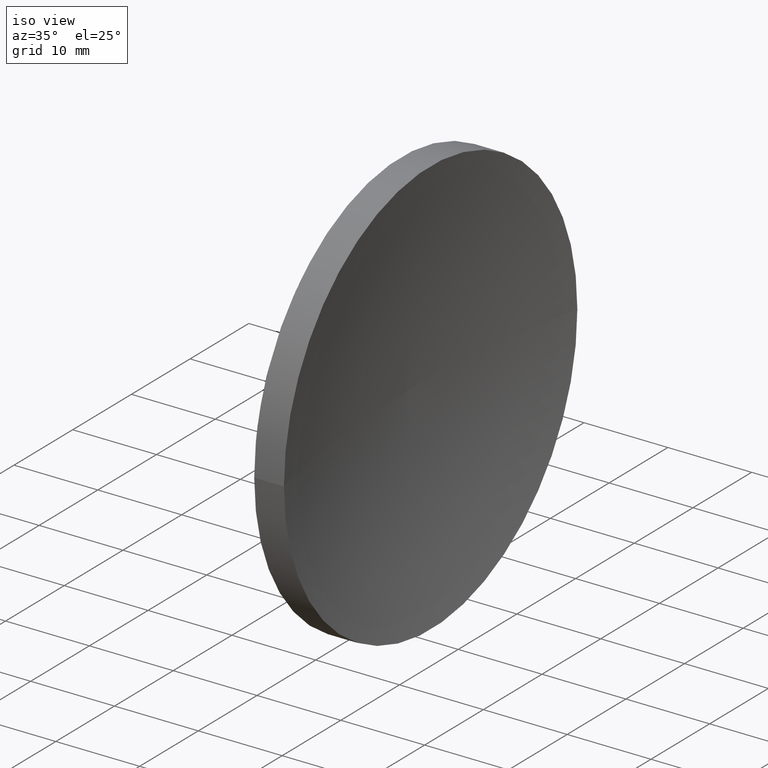
[diagram: clean part render]
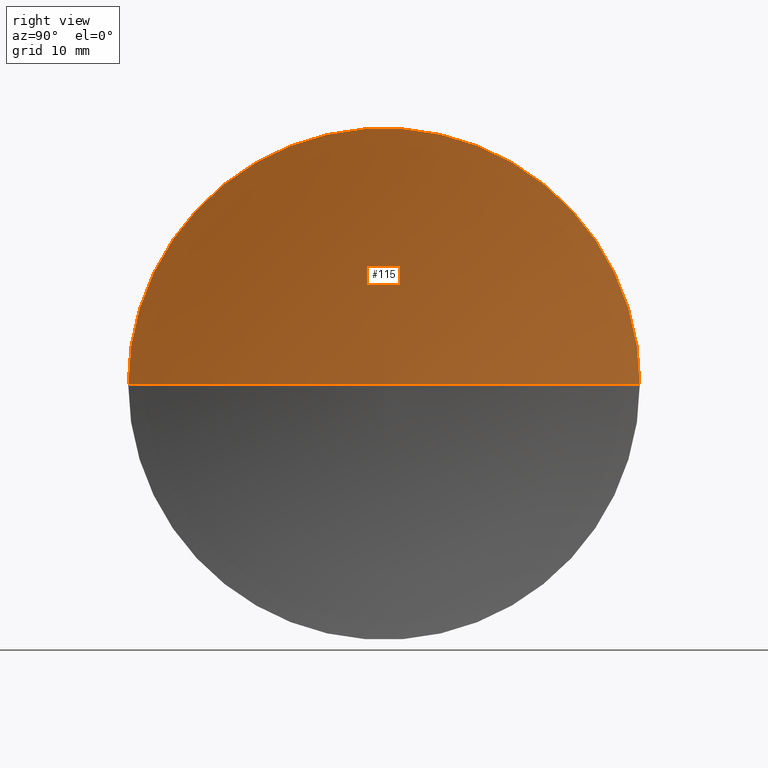
[diagram: tour spotlight — one face highlighted and labeled with its STEP entity id]
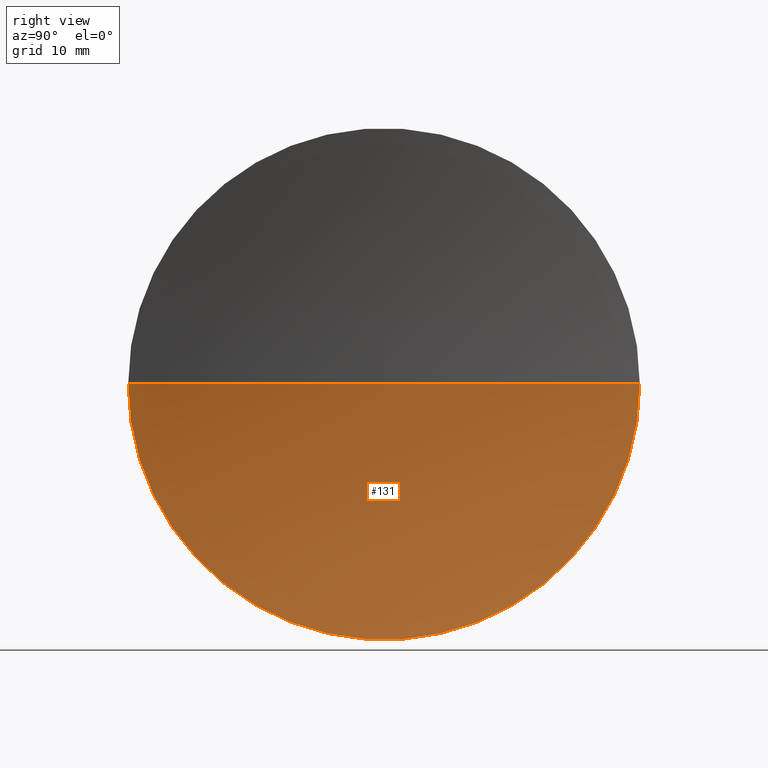
[diagram: tour spotlight — one face highlighted and labeled with its STEP entity id]
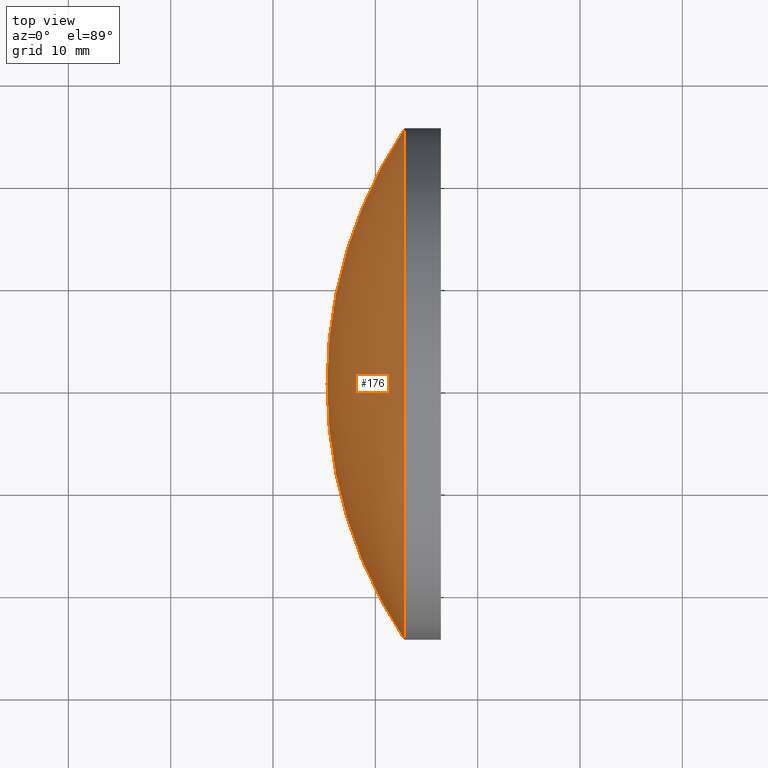
[diagram: tour spotlight — one face highlighted and labeled with its STEP entity id]
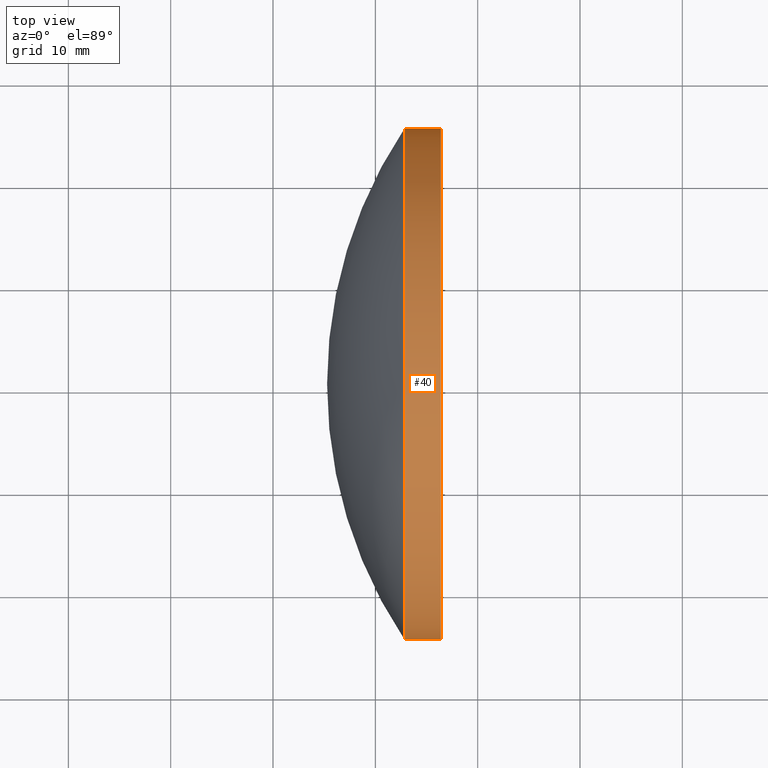
[diagram: tour spotlight — one face highlighted and labeled with its STEP entity id]
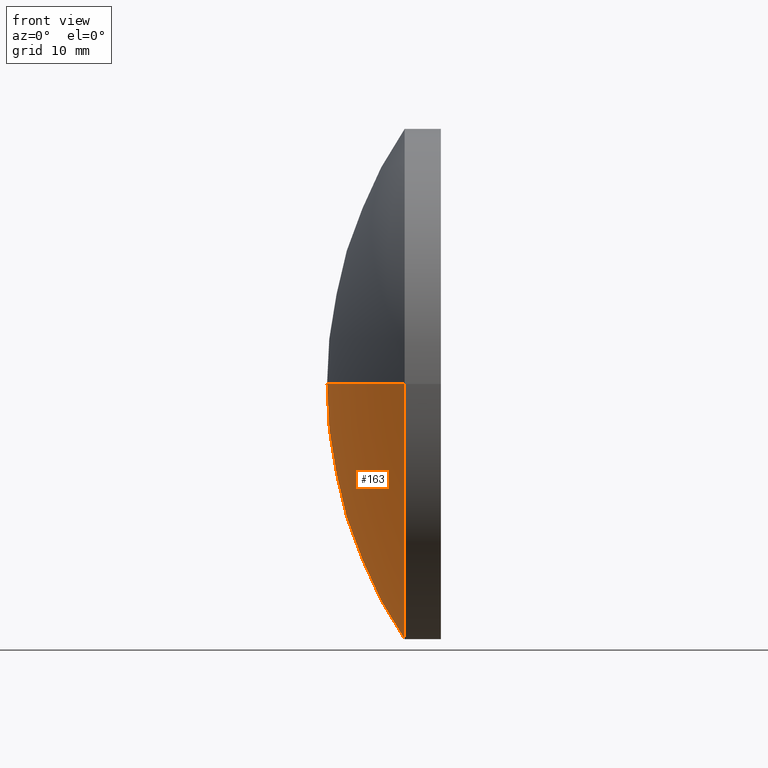
[diagram: tour spotlight — one face highlighted and labeled with its STEP entity id]
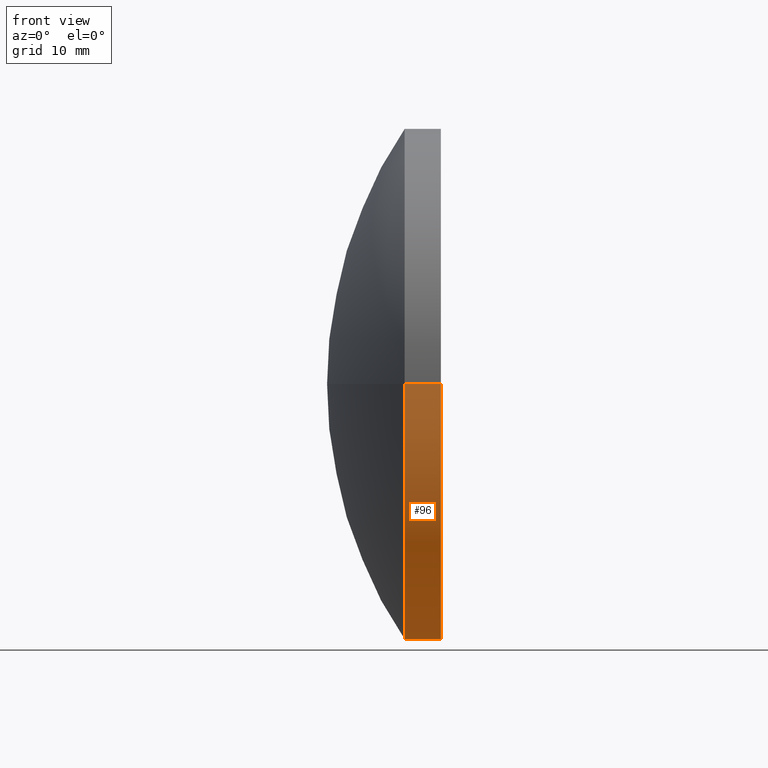
[diagram: tour spotlight — one face highlighted and labeled with its STEP entity id]
A machine part: a face-by-face anatomy tour. The part has 6 B-rep faces; the first image is the clean iso view, then the 6 largest visible faces are spotlighted one at a time (largest first), each with its STEP entity span.

Face 1 — right view, entity #115. In plain terms, the highlighted toroidal blend (fillet) surface has major radius 0.008 mm and minor (blend) radius 112 mm.
Definition (entity closure, byte-faithful):
#5 = ORIENTED_EDGE ( 'NONE', *, *, #56, .F. ) ;
#9 = DIRECTION ( 'NONE',  ( 0.0000000000000000000, -1.000000000000000000, -1.224646799147353200E-016 ) ) ;
#10 = CARTESIAN_POINT ( 'NONE',  ( 365.5821218413742600, 130.4336809418807400, 0.0000000000000000000 ) ) ;
#11 = DIRECTION ( 'NONE',  ( 8.496118506040342700E-032, -1.224646799147353200E-016, 1.000000000000000000 ) ) ;
#12 = ORIENTED_EDGE ( 'NONE', *, *, #71, .F. ) ;
#14 = AXIS2_PLACEMENT_3D ( 'NONE', #153, #126, #107 ) ;
#16 = VERTEX_POINT ( 'NONE', #139 ) ;
#21 = DIRECTION ( 'NONE',  ( -1.000000000000000000, -6.937607244762875000E-016, -0.0000000000000000000 ) ) ;
#25 = CIRCLE ( 'NONE', #120, 112.0000000000000100 ) ;
#32 = CARTESIAN_POINT ( 'NONE',  ( 256.4097896452622600, 130.4336809418806800, 0.0000000000000000000 ) ) ;
#49 = VERTEX_POINT ( 'NONE', #184 ) ;
#52 = AXIS2_PLACEMENT_3D ( 'NONE', #32, #141, #64 ) ;
#56 = EDGE_CURVE ( 'NONE', #130, #16, #164, .T. ) ;
#59 = TOROIDAL_SURFACE ( 'NONE', #165, -0.008036365572015639900, 112.0000000000000100 ) ;
#64 = DIRECTION ( 'NONE',  ( 0.0000000000000000000, -1.000000000000000000, 0.0000000000000000000 ) ) ;
#65 = CARTESIAN_POINT ( 'NONE',  ( 256.4097896452622600, 105.4336809418806800, 0.0000000000000000000 ) ) ;
#71 = EDGE_CURVE ( 'NONE', #16, #49, #25, .T. ) ;
#84 = ORIENTED_EDGE ( 'NONE', *, *, #162, .T. ) ;
#98 = CIRCLE ( 'NONE', #14, 111.9999999999999900 ) ;
#105 = CARTESIAN_POINT ( 'NONE',  ( 365.5821218413742600, 130.4256445763087400, -9.841709374546940000E-019 ) ) ;
#107 = DIRECTION ( 'NONE',  ( -1.000000000000000000, 0.0000000000000000000, 0.0000000000000000000 ) ) ;
#115 = ADVANCED_FACE ( 'NONE', ( #119 ), #59, .F. ) ;
#119 = FACE_OUTER_BOUND ( 'NONE', #138, .T. ) ;
#120 = AXIS2_PLACEMENT_3D ( 'NONE', #105, #11, #9 ) ;
#126 = DIRECTION ( 'NONE',  ( 0.0000000000000000000, 0.0000000000000000000, -1.000000000000000000 ) ) ;
#130 = VERTEX_POINT ( 'NONE', #65 ) ;
#138 = EDGE_LOOP ( 'NONE', ( #12, #5, #84 ) ) ;
#139 = CARTESIAN_POINT ( 'NONE',  ( 256.4097896452622600, 155.4336809418806500, 3.061616997868381100E-015 ) ) ;
#141 = DIRECTION ( 'NONE',  ( -1.000000000000000000, -6.937607244762875000E-016, -0.0000000000000000000 ) ) ;
#153 = CARTESIAN_POINT ( 'NONE',  ( 365.5821218413742600, 130.4417173074527300, 0.0000000000000000000 ) ) ;
#155 = DIRECTION ( 'NONE',  ( 6.937607244762875000E-016, -1.000000000000000000, 0.0000000000000000000 ) ) ;
#162 = EDGE_CURVE ( 'NONE', #130, #49, #98, .T. ) ;
#164 = CIRCLE ( 'NONE', #52, 24.99999999999998200 ) ;
#165 = AXIS2_PLACEMENT_3D ( 'NONE', #10, #21, #155 ) ;
#184 = CARTESIAN_POINT ( 'NONE',  ( 253.5821221296920100, 130.4336809418806500, 0.0000000000000000000 ) ) ;

Face 2 — right view, entity #131. In plain terms, the highlighted toroidal blend (fillet) surface has major radius 0.008 mm and minor (blend) radius 112 mm.
Definition (entity closure, byte-faithful):
#2 = AXIS2_PLACEMENT_3D ( 'NONE', #75, #51, #123 ) ;
#9 = DIRECTION ( 'NONE',  ( 0.0000000000000000000, -1.000000000000000000, -1.224646799147353200E-016 ) ) ;
#11 = DIRECTION ( 'NONE',  ( 8.496118506040342700E-032, -1.224646799147353200E-016, 1.000000000000000000 ) ) ;
#14 = AXIS2_PLACEMENT_3D ( 'NONE', #153, #126, #107 ) ;
#16 = VERTEX_POINT ( 'NONE', #139 ) ;
#20 = DIRECTION ( 'NONE',  ( -1.000000000000000000, -6.937607244762875000E-016, -0.0000000000000000000 ) ) ;
#25 = CIRCLE ( 'NONE', #120, 112.0000000000000100 ) ;
#49 = VERTEX_POINT ( 'NONE', #184 ) ;
#51 = DIRECTION ( 'NONE',  ( -1.000000000000000000, -6.937607244762875000E-016, -0.0000000000000000000 ) ) ;
#57 = ORIENTED_EDGE ( 'NONE', *, *, #133, .F. ) ;
#65 = CARTESIAN_POINT ( 'NONE',  ( 256.4097896452622600, 105.4336809418806800, 0.0000000000000000000 ) ) ;
#71 = EDGE_CURVE ( 'NONE', #16, #49, #25, .T. ) ;
#75 = CARTESIAN_POINT ( 'NONE',  ( 365.5821218413742600, 130.4336809418807400, 0.0000000000000000000 ) ) ;
#76 = DIRECTION ( 'NONE',  ( 0.0000000000000000000, -1.000000000000000000, 0.0000000000000000000 ) ) ;
#97 = ORIENTED_EDGE ( 'NONE', *, *, #162, .F. ) ;
#98 = CIRCLE ( 'NONE', #14, 111.9999999999999900 ) ;
#105 = CARTESIAN_POINT ( 'NONE',  ( 365.5821218413742600, 130.4256445763087400, -9.841709374546940000E-019 ) ) ;
#107 = DIRECTION ( 'NONE',  ( -1.000000000000000000, 0.0000000000000000000, 0.0000000000000000000 ) ) ;
#120 = AXIS2_PLACEMENT_3D ( 'NONE', #105, #11, #9 ) ;
#123 = DIRECTION ( 'NONE',  ( 6.937607244762875000E-016, -1.000000000000000000, 0.0000000000000000000 ) ) ;
#126 = DIRECTION ( 'NONE',  ( 0.0000000000000000000, 0.0000000000000000000, -1.000000000000000000 ) ) ;
#130 = VERTEX_POINT ( 'NONE', #65 ) ;
#131 = ADVANCED_FACE ( 'NONE', ( #190 ), #157, .F. ) ;
#133 = EDGE_CURVE ( 'NONE', #16, #130, #143, .T. ) ;
#139 = CARTESIAN_POINT ( 'NONE',  ( 256.4097896452622600, 155.4336809418806500, 3.061616997868381100E-015 ) ) ;
#143 = CIRCLE ( 'NONE', #187, 24.99999999999998200 ) ;
#144 = ORIENTED_EDGE ( 'NONE', *, *, #71, .T. ) ;
#153 = CARTESIAN_POINT ( 'NONE',  ( 365.5821218413742600, 130.4417173074527300, 0.0000000000000000000 ) ) ;
#157 = TOROIDAL_SURFACE ( 'NONE', #2, -0.008036365572015639900, 112.0000000000000100 ) ;
#162 = EDGE_CURVE ( 'NONE', #130, #49, #98, .T. ) ;
#174 = CARTESIAN_POINT ( 'NONE',  ( 256.4097896452622600, 130.4336809418806800, 0.0000000000000000000 ) ) ;
#179 = EDGE_LOOP ( 'NONE', ( #57, #144, #97 ) ) ;
#184 = CARTESIAN_POINT ( 'NONE',  ( 253.5821221296920100, 130.4336809418806500, 0.0000000000000000000 ) ) ;
#187 = AXIS2_PLACEMENT_3D ( 'NONE', #174, #20, #76 ) ;
#190 = FACE_OUTER_BOUND ( 'NONE', #179, .T. ) ;

Face 3 — top view, entity #176. In plain terms, the highlighted spherical surface has radius 45 mm.
Definition (entity closure, byte-faithful):
#1 = FACE_OUTER_BOUND ( 'NONE', #158, .T. ) ;
#3 = EDGE_CURVE ( 'NONE', #61, #38, #100, .T. ) ;
#4 = AXIS2_PLACEMENT_3D ( 'NONE', #116, #169, #72 ) ;
#26 = DIRECTION ( 'NONE',  ( 0.0000000000000000000, -1.000000000000000000, 0.0000000000000000000 ) ) ;
#27 = CIRCLE ( 'NONE', #114, 45.00000000000004300 ) ;
#33 = DIRECTION ( 'NONE',  ( -0.0000000000000000000, 0.0000000000000000000, 1.000000000000000000 ) ) ;
#34 = CARTESIAN_POINT ( 'NONE',  ( 252.8655572537508100, 155.4336809418806800, 3.061616997868380700E-015 ) ) ;
#38 = VERTEX_POINT ( 'NONE', #136 ) ;
#42 = DIRECTION ( 'NONE',  ( -0.0000000000000000000, 0.0000000000000000000, -1.000000000000000000 ) ) ;
#46 = CIRCLE ( 'NONE', #154, 24.99999999999998200 ) ;
#61 = VERTEX_POINT ( 'NONE', #185 ) ;
#63 = CARTESIAN_POINT ( 'NONE',  ( 290.2821311214902400, 130.4336809418806800, 0.0000000000000000000 ) ) ;
#67 = ORIENTED_EDGE ( 'NONE', *, *, #79, .T. ) ;
#70 = ORIENTED_EDGE ( 'NONE', *, *, #172, .T. ) ;
#72 = DIRECTION ( 'NONE',  ( 0.0000000000000000000, 1.000000000000000000, 1.224646799147353200E-016 ) ) ;
#74 = ORIENTED_EDGE ( 'NONE', *, *, #3, .F. ) ;
#78 = CARTESIAN_POINT ( 'NONE',  ( 290.2821311214902400, 130.4336809418806800, 0.0000000000000000000 ) ) ;
#79 = EDGE_CURVE ( 'NONE', #92, #38, #27, .T. ) ;
#92 = VERTEX_POINT ( 'NONE', #34 ) ;
#100 = CIRCLE ( 'NONE', #4, 45.00000000000001400 ) ;
#108 = CARTESIAN_POINT ( 'NONE',  ( 252.8655572537508100, 130.4336809418806800, 0.0000000000000000000 ) ) ;
#113 = SPHERICAL_SURFACE ( 'NONE', #178, 45.00000000000001400 ) ;
#114 = AXIS2_PLACEMENT_3D ( 'NONE', #63, #33, #140 ) ;
#116 = CARTESIAN_POINT ( 'NONE',  ( 290.2821311214902400, 130.4336809418806800, 0.0000000000000000000 ) ) ;
#136 = CARTESIAN_POINT ( 'NONE',  ( 245.2821311214902400, 130.4336809418806500, 0.0000000000000000000 ) ) ;
#140 = DIRECTION ( 'NONE',  ( 1.000000000000000000, 0.0000000000000000000, 0.0000000000000000000 ) ) ;
#146 = DIRECTION ( 'NONE',  ( -1.233581138472395900E-015, 1.000000000000000000, 0.0000000000000000000 ) ) ;
#154 = AXIS2_PLACEMENT_3D ( 'NONE', #108, #159, #26 ) ;
#158 = EDGE_LOOP ( 'NONE', ( #74, #70, #67 ) ) ;
#159 = DIRECTION ( 'NONE',  ( -1.000000000000000000, -6.937607244762875000E-016, -0.0000000000000000000 ) ) ;
#169 = DIRECTION ( 'NONE',  ( -8.496118506040342700E-032, 1.224646799147353200E-016, -1.000000000000000000 ) ) ;
#172 = EDGE_CURVE ( 'NONE', #61, #92, #46, .T. ) ;
#176 = ADVANCED_FACE ( 'NONE', ( #1 ), #113, .T. ) ;
#178 = AXIS2_PLACEMENT_3D ( 'NONE', #78, #42, #146 ) ;
#185 = CARTESIAN_POINT ( 'NONE',  ( 252.8655572537508100, 105.4336809418807000, 0.0000000000000000000 ) ) ;

Face 4 — top view, entity #40. In plain terms, the highlighted cylindrical surface (partial cylindrical patch) has radius 25 mm, axis along (-1, -0, -0).
Definition (entity closure, byte-faithful):
#16 = VERTEX_POINT ( 'NONE', #139 ) ;
#19 = LINE ( 'NONE', #104, #44 ) ;
#26 = DIRECTION ( 'NONE',  ( 0.0000000000000000000, -1.000000000000000000, 0.0000000000000000000 ) ) ;
#29 = CYLINDRICAL_SURFACE ( 'NONE', #101, 24.99999999999996800 ) ;
#30 = EDGE_LOOP ( 'NONE', ( #87, #170, #47, #124 ) ) ;
#32 = CARTESIAN_POINT ( 'NONE',  ( 256.4097896452622600, 130.4336809418806800, 0.0000000000000000000 ) ) ;
#34 = CARTESIAN_POINT ( 'NONE',  ( 252.8655572537508100, 155.4336809418806800, 3.061616997868380700E-015 ) ) ;
#36 = CARTESIAN_POINT ( 'NONE',  ( 231.8889825959263100, 155.4336809418806200, 3.061616997868379100E-015 ) ) ;
#40 = ADVANCED_FACE ( 'NONE', ( #128 ), #29, .T. ) ;
#44 = VECTOR ( 'NONE', #142, 1000.000000000000000 ) ;
#45 = EDGE_CURVE ( 'NONE', #16, #92, #134, .T. ) ;
#46 = CIRCLE ( 'NONE', #154, 24.99999999999998200 ) ;
#47 = ORIENTED_EDGE ( 'NONE', *, *, #172, .F. ) ;
#50 = DIRECTION ( 'NONE',  ( -1.000000000000000000, -6.937607244762875000E-016, -0.0000000000000000000 ) ) ;
#52 = AXIS2_PLACEMENT_3D ( 'NONE', #32, #141, #64 ) ;
#56 = EDGE_CURVE ( 'NONE', #130, #16, #164, .T. ) ;
#61 = VERTEX_POINT ( 'NONE', #185 ) ;
#64 = DIRECTION ( 'NONE',  ( 0.0000000000000000000, -1.000000000000000000, 0.0000000000000000000 ) ) ;
#65 = CARTESIAN_POINT ( 'NONE',  ( 256.4097896452622600, 105.4336809418806800, 0.0000000000000000000 ) ) ;
#87 = ORIENTED_EDGE ( 'NONE', *, *, #56, .T. ) ;
#89 = EDGE_CURVE ( 'NONE', #130, #61, #19, .T. ) ;
#92 = VERTEX_POINT ( 'NONE', #34 ) ;
#101 = AXIS2_PLACEMENT_3D ( 'NONE', #121, #182, #117 ) ;
#104 = CARTESIAN_POINT ( 'NONE',  ( 231.8889825959263600, 105.4336809418806800, 0.0000000000000000000 ) ) ;
#108 = CARTESIAN_POINT ( 'NONE',  ( 252.8655572537508100, 130.4336809418806800, 0.0000000000000000000 ) ) ;
#117 = DIRECTION ( 'NONE',  ( 1.110223024625157900E-015, -1.000000000000000000, 0.0000000000000000000 ) ) ;
#121 = CARTESIAN_POINT ( 'NONE',  ( 231.8889825959263400, 130.4336809418806500, 0.0000000000000000000 ) ) ;
#124 = ORIENTED_EDGE ( 'NONE', *, *, #89, .F. ) ;
#128 = FACE_OUTER_BOUND ( 'NONE', #30, .T. ) ;
#130 = VERTEX_POINT ( 'NONE', #65 ) ;
#134 = LINE ( 'NONE', #36, #183 ) ;
#139 = CARTESIAN_POINT ( 'NONE',  ( 256.4097896452622600, 155.4336809418806500, 3.061616997868381100E-015 ) ) ;
#141 = DIRECTION ( 'NONE',  ( -1.000000000000000000, -6.937607244762875000E-016, -0.0000000000000000000 ) ) ;
#142 = DIRECTION ( 'NONE',  ( -1.000000000000000000, -6.937607244762875000E-016, -0.0000000000000000000 ) ) ;
#154 = AXIS2_PLACEMENT_3D ( 'NONE', #108, #159, #26 ) ;
#159 = DIRECTION ( 'NONE',  ( -1.000000000000000000, -6.937607244762875000E-016, -0.0000000000000000000 ) ) ;
#164 = CIRCLE ( 'NONE', #52, 24.99999999999998200 ) ;
#170 = ORIENTED_EDGE ( 'NONE', *, *, #45, .T. ) ;
#172 = EDGE_CURVE ( 'NONE', #61, #92, #46, .T. ) ;
#182 = DIRECTION ( 'NONE',  ( -1.000000000000000000, -6.937607244762875000E-016, -0.0000000000000000000 ) ) ;
#183 = VECTOR ( 'NONE', #50, 1000.000000000000000 ) ;
#185 = CARTESIAN_POINT ( 'NONE',  ( 252.8655572537508100, 105.4336809418807000, 0.0000000000000000000 ) ) ;

Face 5 — front view, entity #163. In plain terms, the highlighted spherical surface has radius 45 mm.
Definition (entity closure, byte-faithful):
#3 = EDGE_CURVE ( 'NONE', #61, #38, #100, .T. ) ;
#4 = AXIS2_PLACEMENT_3D ( 'NONE', #116, #169, #72 ) ;
#13 = ORIENTED_EDGE ( 'NONE', *, *, #168, .T. ) ;
#15 = ORIENTED_EDGE ( 'NONE', *, *, #79, .F. ) ;
#18 = CARTESIAN_POINT ( 'NONE',  ( 290.2821311214902400, 130.4336809418806800, 0.0000000000000000000 ) ) ;
#24 = DIRECTION ( 'NONE',  ( -0.0000000000000000000, 0.0000000000000000000, -1.000000000000000000 ) ) ;
#27 = CIRCLE ( 'NONE', #114, 45.00000000000004300 ) ;
#33 = DIRECTION ( 'NONE',  ( -0.0000000000000000000, 0.0000000000000000000, 1.000000000000000000 ) ) ;
#34 = CARTESIAN_POINT ( 'NONE',  ( 252.8655572537508100, 155.4336809418806800, 3.061616997868380700E-015 ) ) ;
#37 = DIRECTION ( 'NONE',  ( 0.0000000000000000000, -1.000000000000000000, 0.0000000000000000000 ) ) ;
#38 = VERTEX_POINT ( 'NONE', #136 ) ;
#58 = AXIS2_PLACEMENT_3D ( 'NONE', #94, #129, #37 ) ;
#61 = VERTEX_POINT ( 'NONE', #185 ) ;
#63 = CARTESIAN_POINT ( 'NONE',  ( 290.2821311214902400, 130.4336809418806800, 0.0000000000000000000 ) ) ;
#72 = DIRECTION ( 'NONE',  ( 0.0000000000000000000, 1.000000000000000000, 1.224646799147353200E-016 ) ) ;
#73 = FACE_OUTER_BOUND ( 'NONE', #82, .T. ) ;
#79 = EDGE_CURVE ( 'NONE', #92, #38, #27, .T. ) ;
#82 = EDGE_LOOP ( 'NONE', ( #13, #171, #15 ) ) ;
#92 = VERTEX_POINT ( 'NONE', #34 ) ;
#94 = CARTESIAN_POINT ( 'NONE',  ( 252.8655572537508100, 130.4336809418806800, 0.0000000000000000000 ) ) ;
#100 = CIRCLE ( 'NONE', #4, 45.00000000000001400 ) ;
#109 = CIRCLE ( 'NONE', #58, 24.99999999999998200 ) ;
#114 = AXIS2_PLACEMENT_3D ( 'NONE', #63, #33, #140 ) ;
#116 = CARTESIAN_POINT ( 'NONE',  ( 290.2821311214902400, 130.4336809418806800, 0.0000000000000000000 ) ) ;
#125 = AXIS2_PLACEMENT_3D ( 'NONE', #18, #24, #188 ) ;
#129 = DIRECTION ( 'NONE',  ( -1.000000000000000000, -6.937607244762875000E-016, -0.0000000000000000000 ) ) ;
#136 = CARTESIAN_POINT ( 'NONE',  ( 245.2821311214902400, 130.4336809418806500, 0.0000000000000000000 ) ) ;
#140 = DIRECTION ( 'NONE',  ( 1.000000000000000000, 0.0000000000000000000, 0.0000000000000000000 ) ) ;
#163 = ADVANCED_FACE ( 'NONE', ( #73 ), #181, .T. ) ;
#168 = EDGE_CURVE ( 'NONE', #92, #61, #109, .T. ) ;
#169 = DIRECTION ( 'NONE',  ( -8.496118506040342700E-032, 1.224646799147353200E-016, -1.000000000000000000 ) ) ;
#171 = ORIENTED_EDGE ( 'NONE', *, *, #3, .T. ) ;
#181 = SPHERICAL_SURFACE ( 'NONE', #125, 45.00000000000001400 ) ;
#185 = CARTESIAN_POINT ( 'NONE',  ( 252.8655572537508100, 105.4336809418807000, 0.0000000000000000000 ) ) ;
#188 = DIRECTION ( 'NONE',  ( -1.233581138472395900E-015, 1.000000000000000000, 0.0000000000000000000 ) ) ;

Face 6 — front view, entity #96. In plain terms, the highlighted cylindrical surface (partial cylindrical patch) has radius 25 mm, axis along (-1, -0, -0).
Definition (entity closure, byte-faithful):
#6 = DIRECTION ( 'NONE',  ( 1.110223024625157900E-015, -1.000000000000000000, 0.0000000000000000000 ) ) ;
#16 = VERTEX_POINT ( 'NONE', #139 ) ;
#19 = LINE ( 'NONE', #104, #44 ) ;
#20 = DIRECTION ( 'NONE',  ( -1.000000000000000000, -6.937607244762875000E-016, -0.0000000000000000000 ) ) ;
#34 = CARTESIAN_POINT ( 'NONE',  ( 252.8655572537508100, 155.4336809418806800, 3.061616997868380700E-015 ) ) ;
#36 = CARTESIAN_POINT ( 'NONE',  ( 231.8889825959263100, 155.4336809418806200, 3.061616997868379100E-015 ) ) ;
#37 = DIRECTION ( 'NONE',  ( 0.0000000000000000000, -1.000000000000000000, 0.0000000000000000000 ) ) ;
#44 = VECTOR ( 'NONE', #142, 1000.000000000000000 ) ;
#45 = EDGE_CURVE ( 'NONE', #16, #92, #134, .T. ) ;
#48 = CARTESIAN_POINT ( 'NONE',  ( 231.8889825959263400, 130.4336809418806500, 0.0000000000000000000 ) ) ;
#50 = DIRECTION ( 'NONE',  ( -1.000000000000000000, -6.937607244762875000E-016, -0.0000000000000000000 ) ) ;
#58 = AXIS2_PLACEMENT_3D ( 'NONE', #94, #129, #37 ) ;
#61 = VERTEX_POINT ( 'NONE', #185 ) ;
#65 = CARTESIAN_POINT ( 'NONE',  ( 256.4097896452622600, 105.4336809418806800, 0.0000000000000000000 ) ) ;
#68 = CYLINDRICAL_SURFACE ( 'NONE', #99, 24.99999999999996800 ) ;
#76 = DIRECTION ( 'NONE',  ( 0.0000000000000000000, -1.000000000000000000, 0.0000000000000000000 ) ) ;
#83 = ORIENTED_EDGE ( 'NONE', *, *, #133, .T. ) ;
#88 = FACE_OUTER_BOUND ( 'NONE', #132, .T. ) ;
#89 = EDGE_CURVE ( 'NONE', #130, #61, #19, .T. ) ;
#92 = VERTEX_POINT ( 'NONE', #34 ) ;
#94 = CARTESIAN_POINT ( 'NONE',  ( 252.8655572537508100, 130.4336809418806800, 0.0000000000000000000 ) ) ;
#96 = ADVANCED_FACE ( 'NONE', ( #88 ), #68, .T. ) ;
#99 = AXIS2_PLACEMENT_3D ( 'NONE', #48, #106, #6 ) ;
#104 = CARTESIAN_POINT ( 'NONE',  ( 231.8889825959263600, 105.4336809418806800, 0.0000000000000000000 ) ) ;
#106 = DIRECTION ( 'NONE',  ( -1.000000000000000000, -6.937607244762875000E-016, -0.0000000000000000000 ) ) ;
#109 = CIRCLE ( 'NONE', #58, 24.99999999999998200 ) ;
#129 = DIRECTION ( 'NONE',  ( -1.000000000000000000, -6.937607244762875000E-016, -0.0000000000000000000 ) ) ;
#130 = VERTEX_POINT ( 'NONE', #65 ) ;
#132 = EDGE_LOOP ( 'NONE', ( #167, #83, #192, #149 ) ) ;
#133 = EDGE_CURVE ( 'NONE', #16, #130, #143, .T. ) ;
#134 = LINE ( 'NONE', #36, #183 ) ;
#139 = CARTESIAN_POINT ( 'NONE',  ( 256.4097896452622600, 155.4336809418806500, 3.061616997868381100E-015 ) ) ;
#142 = DIRECTION ( 'NONE',  ( -1.000000000000000000, -6.937607244762875000E-016, -0.0000000000000000000 ) ) ;
#143 = CIRCLE ( 'NONE', #187, 24.99999999999998200 ) ;
#149 = ORIENTED_EDGE ( 'NONE', *, *, #168, .F. ) ;
#167 = ORIENTED_EDGE ( 'NONE', *, *, #45, .F. ) ;
#168 = EDGE_CURVE ( 'NONE', #92, #61, #109, .T. ) ;
#174 = CARTESIAN_POINT ( 'NONE',  ( 256.4097896452622600, 130.4336809418806800, 0.0000000000000000000 ) ) ;
#183 = VECTOR ( 'NONE', #50, 1000.000000000000000 ) ;
#185 = CARTESIAN_POINT ( 'NONE',  ( 252.8655572537508100, 105.4336809418807000, 0.0000000000000000000 ) ) ;
#187 = AXIS2_PLACEMENT_3D ( 'NONE', #174, #20, #76 ) ;
#192 = ORIENTED_EDGE ( 'NONE', *, *, #89, .T. ) ;